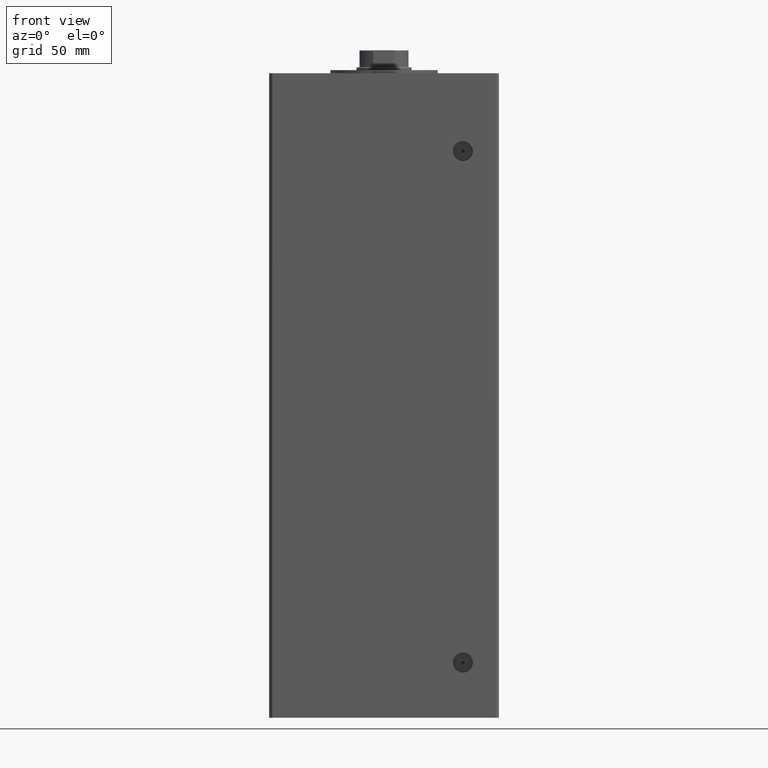
[diagram: clean part render]
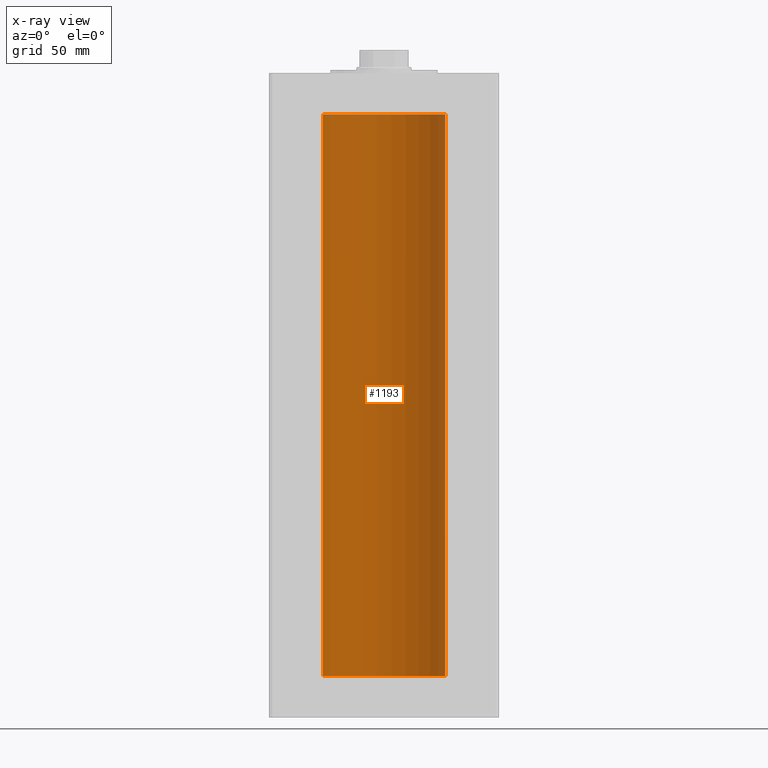
[diagram: x-ray — body ghosted, one internal face saturated and labeled with its STEP entity id]
A machine part, front view, then the same camera in x-ray: the body is ghosted and one INTERNAL B-rep face — a face not visible from any outside direction — is saturated and labeled: STEP entity #1193.
In plain terms, the highlighted cylindrical surface (partial cylindrical patch) has radius 40 mm, axis along (-0, -0, -1).
Its self-contained STEP definition (entity closure, byte-faithful):
#931 = CYLINDRICAL_SURFACE ( 'NONE', #43778, 40.00000000000000000 ) ;
#1193 = ADVANCED_FACE ( 'NONE', ( #17257 ), #931, .F. ) ;
#1311 = DIRECTION ( 'NONE',  ( -0.000000000000000000, -0.000000000000000000, -1.000000000000000000 ) ) ;
#1591 = CARTESIAN_POINT ( 'NONE',  ( 0.000000000000000000, 0.000000000000000000, 367.0000000000000000 ) ) ;
#4999 = EDGE_CURVE ( 'NONE', #12300, #8095, #43590, .T. ) ;
#8095 = VERTEX_POINT ( 'NONE', #15213 ) ;
#9363 = DIRECTION ( 'NONE',  ( -1.000000000000000000, 0.000000000000000000, 0.000000000000000000 ) ) ;
#11424 = ORIENTED_EDGE ( 'NONE', *, *, #32741, .F. ) ;
#12300 = VERTEX_POINT ( 'NONE', #38372 ) ;
#13943 = EDGE_CURVE ( 'NONE', #12300, #36408, #50450, .T. ) ;
#15213 = CARTESIAN_POINT ( 'NONE',  ( 40.00000000000000000, 4.898587196589413026E-15, 0.000000000000000000 ) ) ;
#16144 = LINE ( 'NONE', #29239, #19709 ) ;
#17257 = FACE_OUTER_BOUND ( 'NONE', #44014, .T. ) ;
#17656 = DIRECTION ( 'NONE',  ( -0.000000000000000000, 0.000000000000000000, 1.000000000000000000 ) ) ;
#17967 = ORIENTED_EDGE ( 'NONE', *, *, #36341, .T. ) ;
#18241 = ORIENTED_EDGE ( 'NONE', *, *, #13943, .T. ) ;
#19166 = ORIENTED_EDGE ( 'NONE', *, *, #4999, .F. ) ;
#19616 = CARTESIAN_POINT ( 'NONE',  ( 40.00000000000000000, 4.898587196589413026E-15, 367.0000000000000000 ) ) ;
#19709 = VECTOR ( 'NONE', #1311, 1000.000000000000000 ) ;
#19829 = DIRECTION ( 'NONE',  ( 1.000000000000000000, 0.000000000000000000, 0.000000000000000000 ) ) ;
#20166 = VERTEX_POINT ( 'NONE', #43427 ) ;
#21864 = VECTOR ( 'NONE', #35959, 1000.000000000000000 ) ;
#25451 = DIRECTION ( 'NONE',  ( -0.000000000000000000, -0.000000000000000000, -1.000000000000000000 ) ) ;
#28514 = DIRECTION ( 'NONE',  ( -0.000000000000000000, 0.000000000000000000, 1.000000000000000000 ) ) ;
#28603 = AXIS2_PLACEMENT_3D ( 'NONE', #1591, #17656, #49809 ) ;
#29239 = CARTESIAN_POINT ( 'NONE',  ( -40.00000000000000000, 0.000000000000000000, 367.0000000000000000 ) ) ;
#31950 = CARTESIAN_POINT ( 'NONE',  ( 0.000000000000000000, 0.000000000000000000, 0.000000000000000000 ) ) ;
#32741 = EDGE_CURVE ( 'NONE', #8095, #20166, #40658, .T. ) ;
#35959 = DIRECTION ( 'NONE',  ( -0.000000000000000000, -0.000000000000000000, -1.000000000000000000 ) ) ;
#36341 = EDGE_CURVE ( 'NONE', #36408, #20166, #16144, .T. ) ;
#36408 = VERTEX_POINT ( 'NONE', #46599 ) ;
#37533 = CARTESIAN_POINT ( 'NONE',  ( 0.000000000000000000, 0.000000000000000000, 367.0000000000000000 ) ) ;
#38372 = CARTESIAN_POINT ( 'NONE',  ( 40.00000000000000000, 4.898587196589413026E-15, 367.0000000000000000 ) ) ;
#39078 = AXIS2_PLACEMENT_3D ( 'NONE', #31950, #28514, #19829 ) ;
#40658 = CIRCLE ( 'NONE', #39078, 40.00000000000000000 ) ;
#43427 = CARTESIAN_POINT ( 'NONE',  ( -40.00000000000000000, 0.000000000000000000, 0.000000000000000000 ) ) ;
#43590 = LINE ( 'NONE', #19616, #21864 ) ;
#43778 = AXIS2_PLACEMENT_3D ( 'NONE', #37533, #25451, #9363 ) ;
#44014 = EDGE_LOOP ( 'NONE', ( #19166, #18241, #17967, #11424 ) ) ;
#46599 = CARTESIAN_POINT ( 'NONE',  ( -40.00000000000000000, 0.000000000000000000, 367.0000000000000000 ) ) ;
#49809 = DIRECTION ( 'NONE',  ( 1.000000000000000000, 0.000000000000000000, 0.000000000000000000 ) ) ;
#50450 = CIRCLE ( 'NONE', #28603, 40.00000000000000000 ) ;